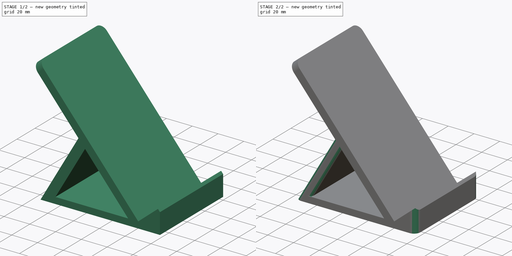
[diagram: build sequence overview — one tinted view per stage of 2, left to right]
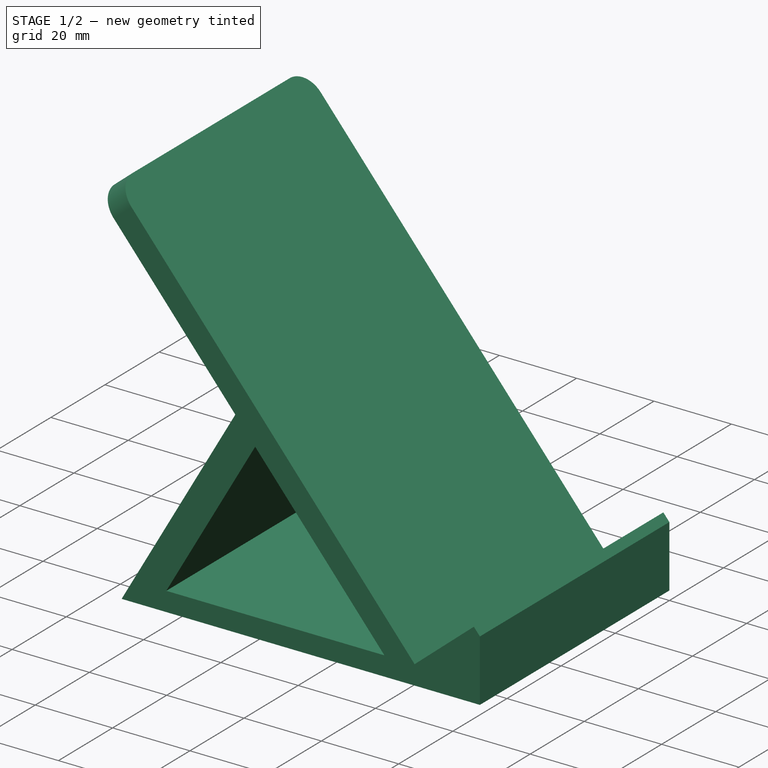
[diagram: stage 1 of 2 — iso view after this stage's code; geometry added in this stage tinted green]
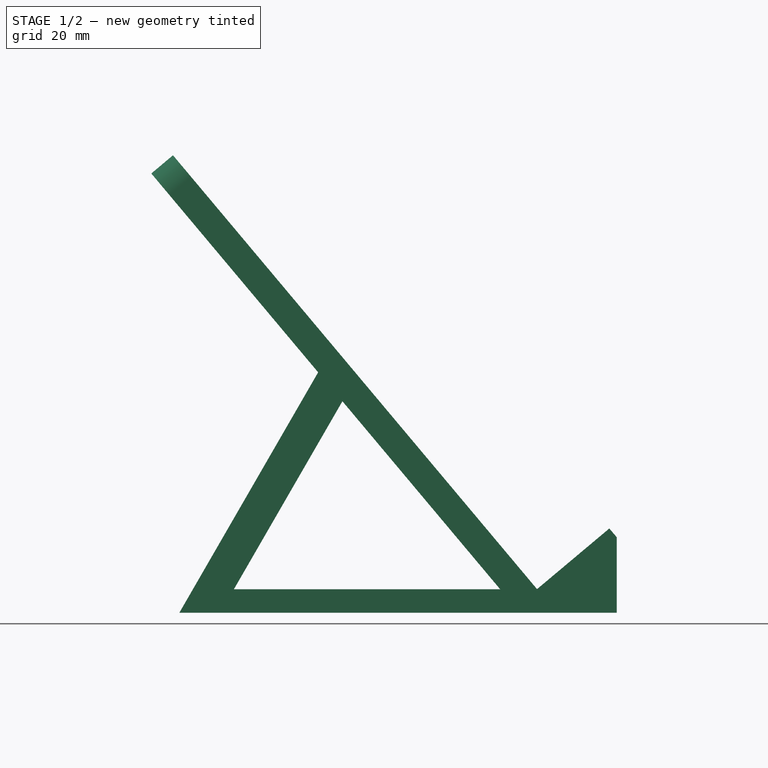
[diagram: stage 1 of 2 — front view after this stage's code; geometry added in this stage tinted green]
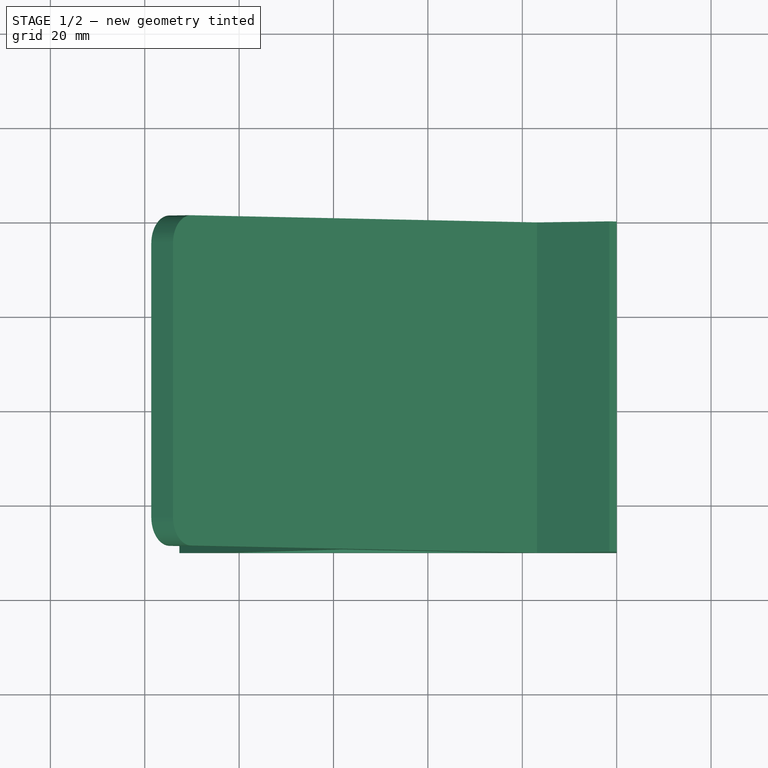
[diagram: stage 1 of 2 — top view after this stage's code; geometry added in this stage tinted green]
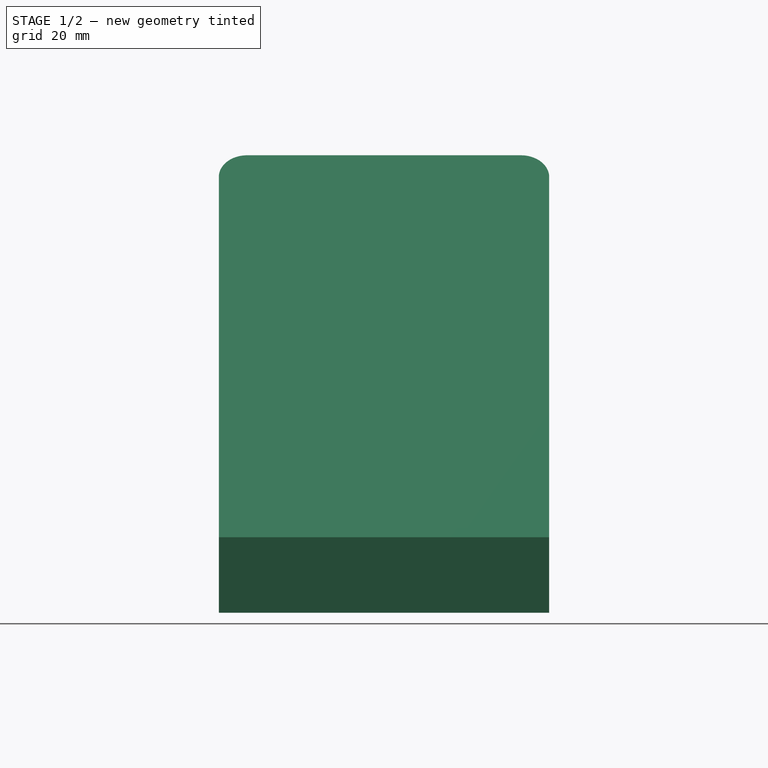
[diagram: stage 1 of 2 — right view after this stage's code; geometry added in this stage tinted green]
FCSTD DOCUMENT  (FreeCAD 0.16R)
Label: soportemultimetro
License: All rights reserved
LicenseURL: http://en.wikipedia.org/wiki/All_rights_reserved
objects: PartDesign::Fillet×3, Sketcher::SketchObject×1, PartDesign::Pad×1
note: 6 computed .brp shape members not serialized (recipe doc carries the construction recipe); baked Part::Feature solids carry a one-line shape summary decoded from their .brp

FEATURE [Sketcher::SketchObject] Sketch
  Placement = pos=(0,0,0) rot=(-1,0,0;4.71239rad)
  sketch-geometry (13):
    g0: LineSegment StartX=0 StartY=0 StartZ=0 EndX=0 EndY=16 EndZ=0
    g1: LineSegment StartX=-94.0126 StartY=96.9253 StartZ=0 EndX=-98.6088 EndY=93.0686 EndZ=0
    g2: LineSegment StartX=-98.6088 StartY=93.0686 StartZ=0 EndX=-63.2555 EndY=50.9362 EndZ=0
    g3: LineSegment StartX=-63.2555 StartY=50.9362 StartZ=0 EndX=-92.6635 EndY=0 EndZ=0
    g4: LineSegment StartX=-92.6635 StartY=0 StartZ=0 EndX=0 EndY=0 EndZ=0
    g5: LineSegment StartX=0 StartY=16 StartZ=0 EndX=-1.55716 EndY=17.8558 EndZ=0
    g6: LineSegment StartX=-1.55716 StartY=17.8558 StartZ=0 EndX=-16.878 EndY=5 EndZ=0
    g7: LineSegment StartX=-16.878 StartY=5 StartZ=0 EndX=-94.0126 EndY=96.9253 EndZ=0
    g8: LineSegment [constr] StartX=-16.878 StartY=5 StartZ=0 EndX=-21.4743 EndY=1.14327 EndZ=0
    g9: LineSegment [constr] StartX=-21.4743 StartY=1.14327 StartZ=0 EndX=-63.2555 EndY=50.9362 EndZ=0
    g10: LineSegment StartX=-58.1132 StartY=44.8078 StartZ=0 EndX=-24.6883 EndY=4.9735 EndZ=0
    g11: LineSegment StartX=-24.6883 StartY=4.9735 StartZ=0 EndX=-81.1116 EndY=4.9735 EndZ=0
    g12: LineSegment StartX=-81.1116 StartY=4.9735 StartZ=0 EndX=-58.1132 EndY=44.8078 EndZ=0
  constraints (37):
    c: Coincident(g0,g-1)
    c: PointOnObject(g0,g-2)
    c: Coincident(g2,g1)
    c: Coincident(g3,g2)
    c: PointOnObject(g3,g-1)
    c: Coincident(g4,g3)
    c: Coincident(g4,g-1)
    c: Coincident(g5,g0)
    c: Coincident(g6,g5)
    c: Coincident(g7,g6)
    c: Coincident(g7,g1)
    c: Perpendicular(g6,g7)
    c: Perpendicular(g1,g7)
    c: Perpendicular(g2,g1)
    c: Distance(g1) = 6
    c: Distance(g6) = 20
    c: Coincident(g8,g6)
    c: Perpendicular(g7,g8)
    c: Distance(g8) = 6
    c: Coincident(g9,g8)
    c: Coincident(g9,g2)
    c: Distance(g9) = 65
    c: Perpendicular(g5,g6)
    c: Angle(g7,g4) = 0.872665
    c: Angle(g4,g3) = 1.0472
    c: Distance(g7) = 120
    c: DistanceY(g0,g0) = 16
    c: DistanceY(g-1,g6) = 5
    c: PointOnObject(g10,g9)
    c: PointOnObject(g10,g9)
    c: Coincident(g11,g10)
    c: Horizontal(g11)
    c: Coincident(g12,g11)
    c: Coincident(g12,g10)
    c: Parallel(g12,g3)
    c: Distance(g10,g2) = 8
    c: Distance(g10,g8) = 5
FEATURE [PartDesign::Pad] Pad
  Length = 70
  Length2 = 100
  Placement = pos=(0,0,0) rot=(-1,0,0;4.71239rad)
  Sketch = -> Sketch
  Type = 0
FEATURE [PartDesign::Fillet] Fillet
  Base = -> Pad [Edge16,Edge15]
  Placement = pos=(0,0,0) rot=(-1,0,0;4.71239rad)
  Radius = 6
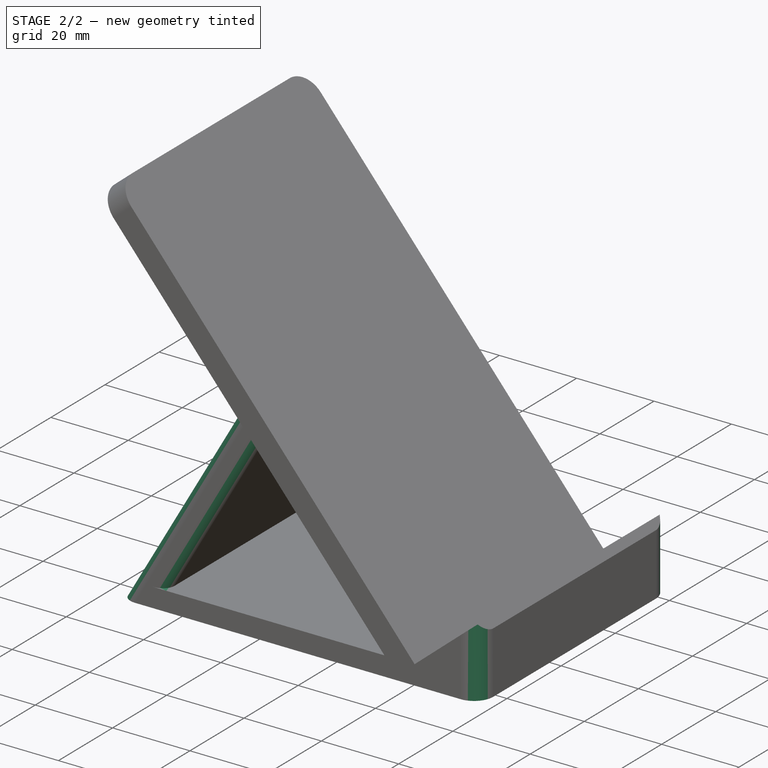
[diagram: stage 2 of 2 — iso view after this stage's code; geometry added in this stage tinted green]
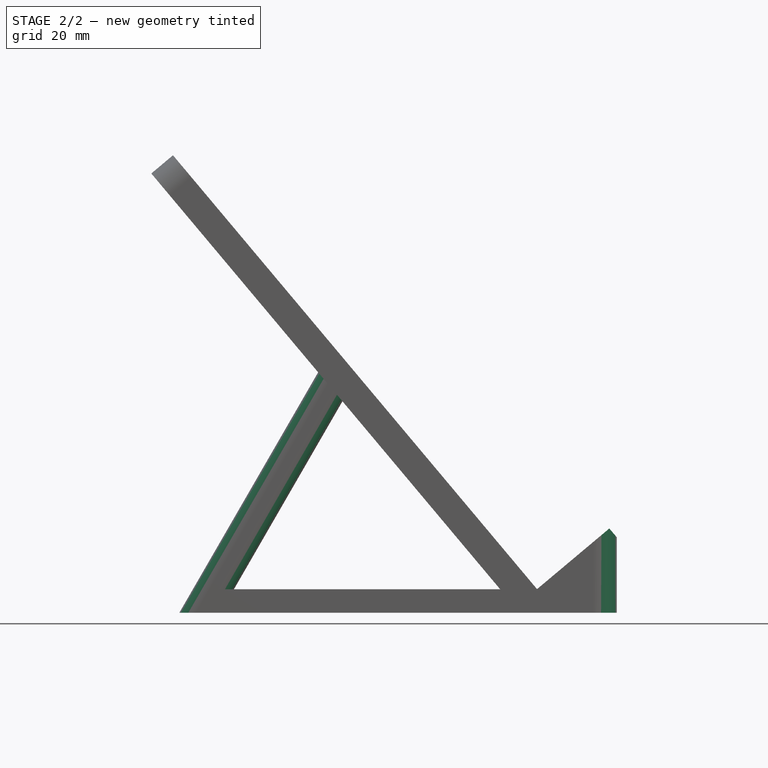
[diagram: stage 2 of 2 — front view after this stage's code; geometry added in this stage tinted green]
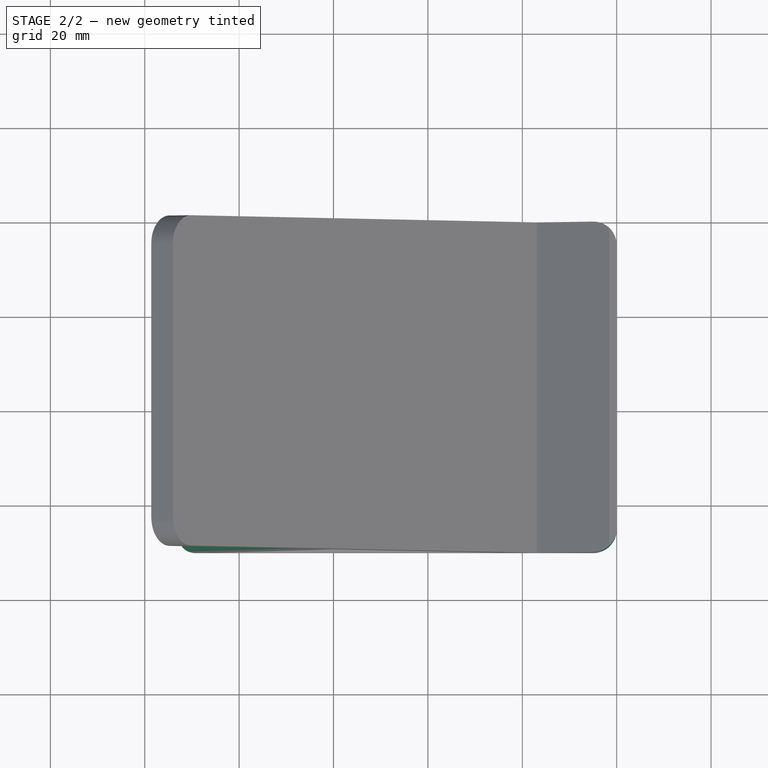
[diagram: stage 2 of 2 — top view after this stage's code; geometry added in this stage tinted green]
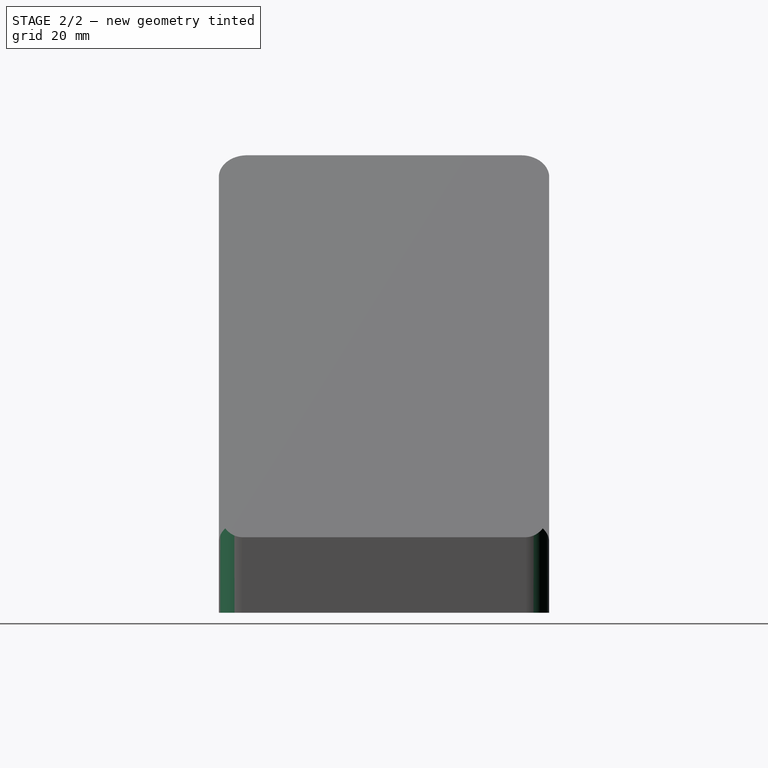
[diagram: stage 2 of 2 — right view after this stage's code; geometry added in this stage tinted green]
FEATURE [PartDesign::Fillet] Fillet001
  Base = -> Fillet [Edge27,Edge18]
  Placement = pos=(0,0,0) rot=(-1,0,0;4.71239rad)
  Radius = 5
FEATURE [PartDesign::Fillet] Fillet002
  Base = -> Fillet001 [Edge39,Edge30,Edge6,Edge10]
  Placement = pos=(0,0,0) rot=(-1,0,0;4.71239rad)
  Radius = 3
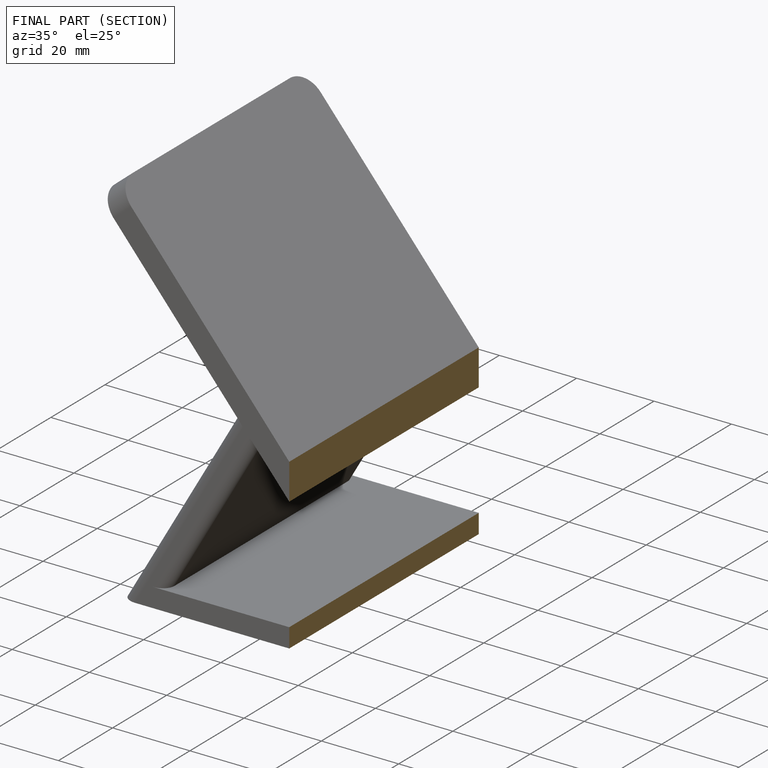
[diagram: finished part — half-section view (interior)]
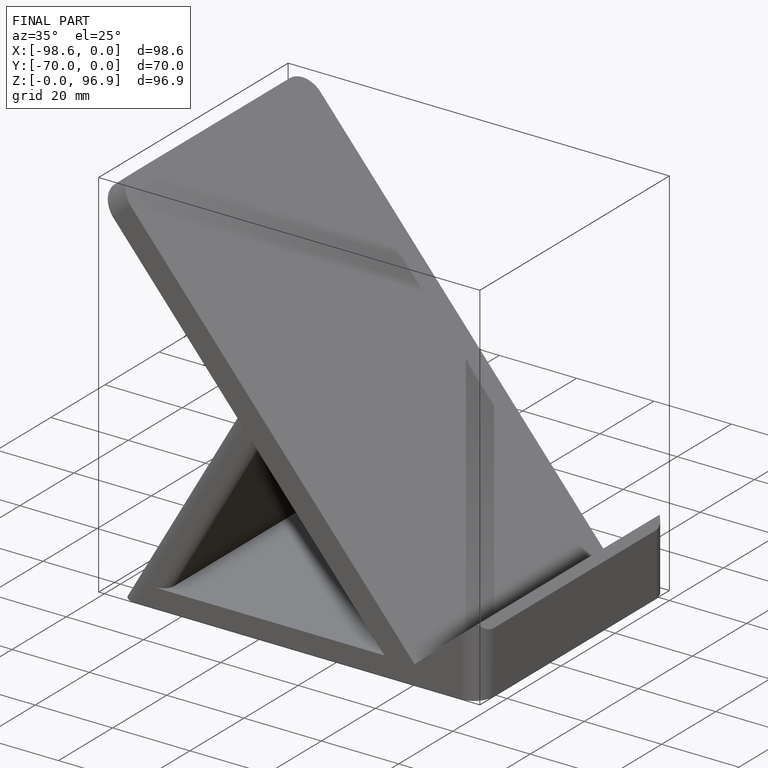
[diagram: finished part — iso view with bounding-box wireframe]
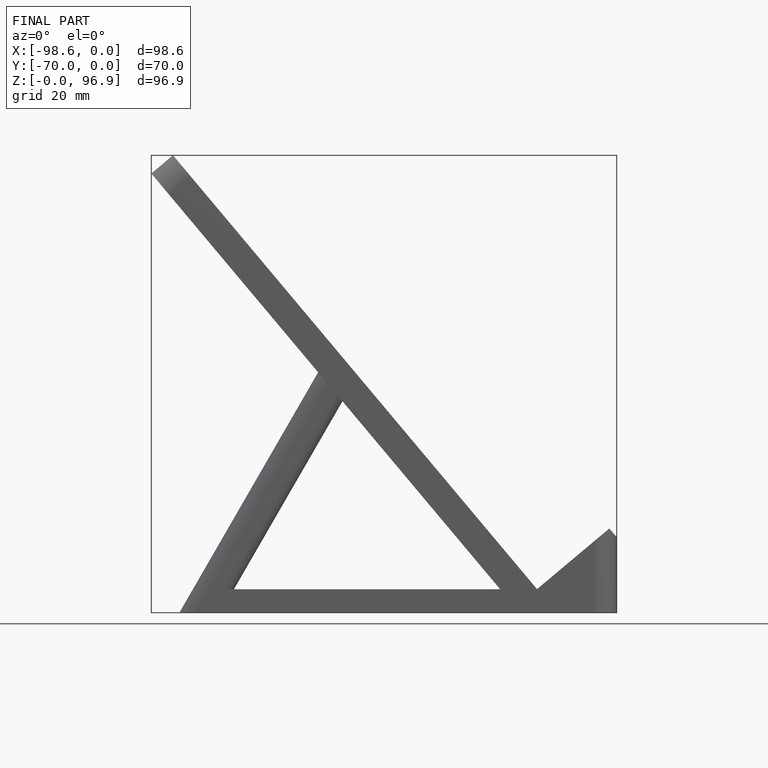
[diagram: finished part — front view with bounding-box wireframe]
